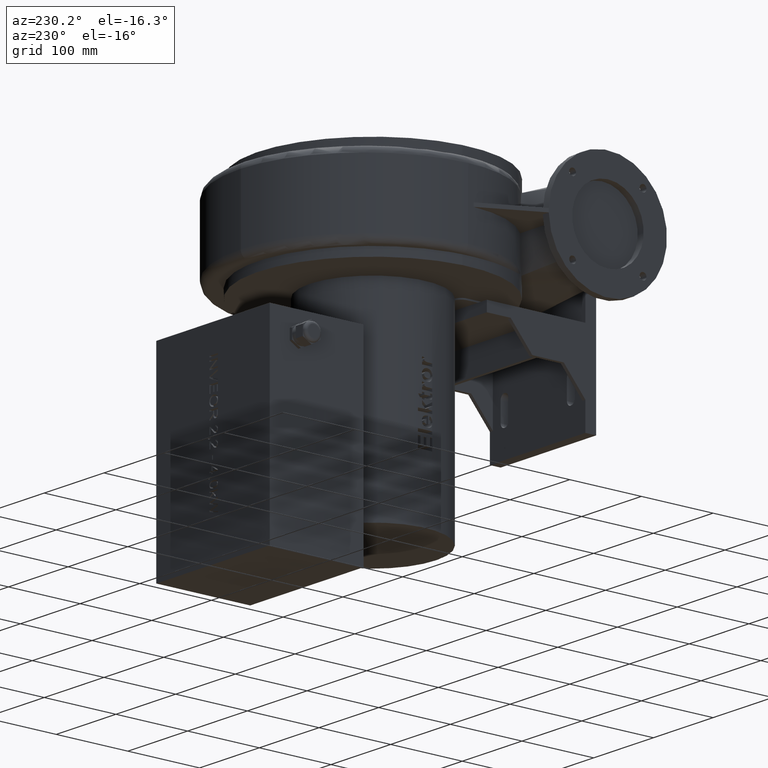
[diagram: clean part render]
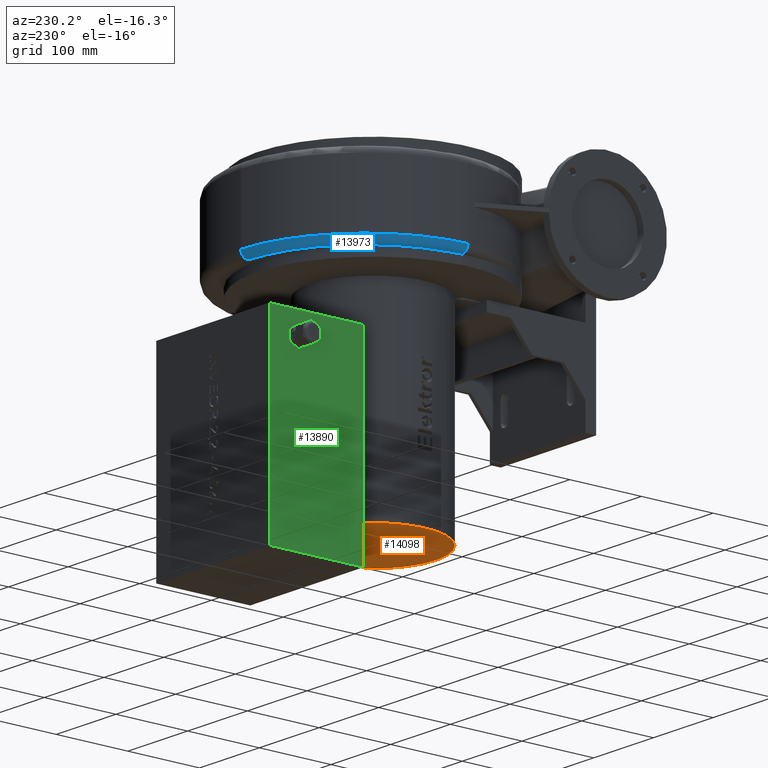
[diagram: same view with three faces highlighted in distinct colors, each labeled with its STEP entity id]
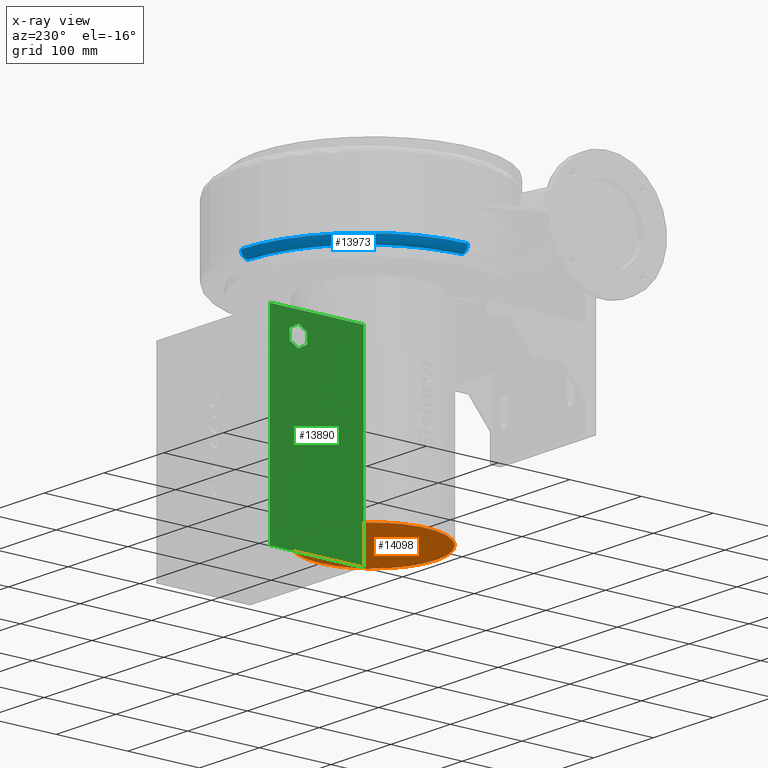
[diagram: x-ray of the same camera — body ghosted, the three highlighted faces saturated]
A machine part, auxiliary view with three faces highlighted in distinct colors.
The next image is the same camera in x-ray (body ghosted, the three faces saturated) — at least one of them is partly hidden behind the body in this view.
Their STEP definitions:

[orange] entity #14098 — the highlighted planar face has unit normal (0, 0, -1).
#157=CIRCLE('',#14670,88.);
#1474=FACE_OUTER_BOUND('',#2347,.T.);
#2347=EDGE_LOOP('',(#11051));
#5845=VERTEX_POINT('',#20377);
#7433=EDGE_CURVE('',#5845,#5845,#157,.T.);
#11051=ORIENTED_EDGE('',*,*,#7433,.F.);
#12755=PLANE('',#14938);
#14098=ADVANCED_FACE('',(#1474),#12755,.T.);
#14670=AXIS2_PLACEMENT_3D('',#20378,#16326,#16327);
#14938=AXIS2_PLACEMENT_3D('',#22278,#17211,#17212);
#16326=DIRECTION('center_axis',(-1.92202700266166E-16,-1.29953312800046E-15,
1.));
#16327=DIRECTION('ref_axis',(-1.,-8.72992445342416E-31,-1.92202700266166E-16));
#17211=DIRECTION('center_axis',(1.92202700266166E-16,1.29953312800046E-15,
-1.));
#17212=DIRECTION('ref_axis',(-1.,0.,0.));
#20377=CARTESIAN_POINT('',(112.435848534473,137.78788717354,-273.004284906135));
#20378=CARTESIAN_POINT('Origin',(24.4358485344734,137.78788717354,-273.004284906135));
#22278=CARTESIAN_POINT('Origin',(24.4358485344734,137.78788717354,-273.004284906135));

[blue] entity #13973 — the highlighted toroidal blend (fillet) surface has major radius 163 mm and minor (blend) radius 10 mm.
#240=CIRCLE('',#14795,163.);
#243=CIRCLE('',#14799,10.);
#244=CIRCLE('',#14800,173.);
#245=CIRCLE('',#14801,10.0000000000002);
#296=TOROIDAL_SURFACE('',#14798,163.,10.);
#673=B_SPLINE_CURVE_WITH_KNOTS('',3,(#21433,#21434,#21435,#21436),
 .UNSPECIFIED.,.F.,.F.,(4,4),(-1.56871192667796,-0.000999386847928538),
 .UNSPECIFIED.);
#1349=FACE_OUTER_BOUND('',#2161,.T.);
#2161=EDGE_LOOP('',(#10384,#10385,#10386,#10387,#10388));
#5987=VERTEX_POINT('',#21117);
#6038=VERTEX_POINT('',#21415);
#6039=VERTEX_POINT('',#21432);
#6052=VERTEX_POINT('',#21508);
#6054=VERTEX_POINT('',#21515);
#7646=EDGE_CURVE('',#6039,#6038,#673,.T.);
#7664=EDGE_CURVE('',#6052,#6039,#240,.T.);
#7667=EDGE_CURVE('',#5987,#6038,#243,.T.);
#7668=EDGE_CURVE('',#5987,#6054,#244,.T.);
#7669=EDGE_CURVE('',#6054,#6052,#245,.T.);
#10384=ORIENTED_EDGE('',*,*,#7646,.T.);
#10385=ORIENTED_EDGE('',*,*,#7667,.F.);
#10386=ORIENTED_EDGE('',*,*,#7668,.T.);
#10387=ORIENTED_EDGE('',*,*,#7669,.T.);
#10388=ORIENTED_EDGE('',*,*,#7664,.T.);
#13973=ADVANCED_FACE('',(#1349),#296,.T.);
#14795=AXIS2_PLACEMENT_3D('',#21509,#16635,#16636);
#14798=AXIS2_PLACEMENT_3D('',#21513,#16641,#16642);
#14799=AXIS2_PLACEMENT_3D('',#21514,#16643,#16644);
#14800=AXIS2_PLACEMENT_3D('',#21516,#16645,#16646);
#14801=AXIS2_PLACEMENT_3D('',#21517,#16647,#16648);
#16635=DIRECTION('center_axis',(-1.22464679914736E-16,-1.29953312800048E-15,
1.));
#16636=DIRECTION('ref_axis',(-0.707106781186548,0.707106781186547,8.32313081562155E-16));
#16641=DIRECTION('center_axis',(-1.22464679914736E-16,-1.29953312800048E-15,
1.));
#16642=DIRECTION('ref_axis',(1.,0.,1.23215503311E-16));
#16643=DIRECTION('center_axis',(-8.88178419700125E-16,-1.,-1.29953312800048E-15));
#16644=DIRECTION('ref_axis',(-1.,8.88178419700125E-16,-1.22464679914735E-16));
#16645=DIRECTION('center_axis',(1.22464679914736E-16,1.29953312800048E-15,
-1.));
#16646=DIRECTION('ref_axis',(-0.707106781186548,0.707106781186547,8.32313081562155E-16));
#16647=DIRECTION('center_axis',(-1.,-1.01654872413676E-31,-1.22464679914736E-16));
#16648=DIRECTION('ref_axis',(-2.46519032881566E-31,1.,1.29953312800048E-15));
#21117=CARTESIAN_POINT('',(-144.564151465527,145.787887173537,24.9957150938644));
#21415=CARTESIAN_POINT('',(-135.364026309033,145.787887173537,15.0277564144393));
#21432=CARTESIAN_POINT('',(-133.819285994609,161.352954438078,14.9957150938644));
#21433=CARTESIAN_POINT('Ctrl Pts',(-133.819285994609,161.352954438078,14.9957150938644));
#21434=CARTESIAN_POINT('Ctrl Pts',(-134.586378515263,156.201416838393,14.9957150938644));
#21435=CARTESIAN_POINT('Ctrl Pts',(-135.102743751021,151.007002182166,15.0067899004396));
#21436=CARTESIAN_POINT('Ctrl Pts',(-135.364026309033,145.787887173537,15.0277564144393));
#21508=CARTESIAN_POINT('',(28.4358485344729,308.787887173537,14.9957150938646));
#21509=CARTESIAN_POINT('Origin',(28.4358485344729,145.787887173537,14.9957150938644));
#21513=CARTESIAN_POINT('Origin',(28.4358485344729,145.787887173537,24.9957150938644));
#21514=CARTESIAN_POINT('Origin',(-134.564151465527,145.787887173537,24.9957150938644));
#21515=CARTESIAN_POINT('',(28.4358485344729,318.787887173538,24.9957150938647));
#21516=CARTESIAN_POINT('Origin',(28.4358485344729,145.787887173537,24.9957150938644));
#21517=CARTESIAN_POINT('Origin',(28.4358485344729,308.787887173537,24.9957150938646));

[green] entity #13890 — the highlighted planar face has unit normal (-1, 0, -0).
#344=FACE_BOUND('',#2037,.T.);
#1266=FACE_OUTER_BOUND('',#2036,.T.);
#2036=EDGE_LOOP('',(#9810,#9811,#9812,#9813));
#2037=EDGE_LOOP('',(#9814,#9815,#9816,#9817,#9818,#9819));
#3034=LINE('',#19735,#4367);
#3048=LINE('',#19785,#4381);
#3051=LINE('',#19790,#4384);
#3053=LINE('',#19794,#4386);
#3055=LINE('',#19798,#4388);
#3057=LINE('',#19802,#4390);
#3058=LINE('',#19804,#4391);
#3141=LINE('',#20087,#4474);
#3144=LINE('',#20094,#4477);
#3145=LINE('',#20095,#4478);
#4367=VECTOR('',#15775,271.);
#4381=VECTOR('',#15823,14.);
#4384=VECTOR('',#15828,14.);
#4386=VECTOR('',#15832,14.);
#4388=VECTOR('',#15836,14.);
#4390=VECTOR('',#15840,14.);
#4391=VECTOR('',#15843,14.);
#4474=VECTOR('',#16060,131.);
#4477=VECTOR('',#16067,271.);
#4478=VECTOR('',#16068,131.);
#5650=VERTEX_POINT('',#19731);
#5652=VERTEX_POINT('',#19734);
#5670=VERTEX_POINT('',#19782);
#5671=VERTEX_POINT('',#19784);
#5672=VERTEX_POINT('',#19788);
#5673=VERTEX_POINT('',#19792);
#5674=VERTEX_POINT('',#19796);
#5675=VERTEX_POINT('',#19800);
#5748=VERTEX_POINT('',#20085);
#5750=VERTEX_POINT('',#20093);
#7155=EDGE_CURVE('',#5652,#5650,#3034,.T.);
#7175=EDGE_CURVE('',#5671,#5670,#3048,.T.);
#7178=EDGE_CURVE('',#5670,#5672,#3051,.T.);
#7180=EDGE_CURVE('',#5672,#5673,#3053,.T.);
#7182=EDGE_CURVE('',#5673,#5674,#3055,.T.);
#7184=EDGE_CURVE('',#5674,#5675,#3057,.T.);
#7185=EDGE_CURVE('',#5675,#5671,#3058,.T.);
#7289=EDGE_CURVE('',#5748,#5650,#3141,.T.);
#7292=EDGE_CURVE('',#5748,#5750,#3144,.T.);
#7293=EDGE_CURVE('',#5750,#5652,#3145,.T.);
#9810=ORIENTED_EDGE('',*,*,#7155,.T.);
#9811=ORIENTED_EDGE('',*,*,#7289,.F.);
#9812=ORIENTED_EDGE('',*,*,#7292,.T.);
#9813=ORIENTED_EDGE('',*,*,#7293,.T.);
#9814=ORIENTED_EDGE('',*,*,#7175,.T.);
#9815=ORIENTED_EDGE('',*,*,#7178,.T.);
#9816=ORIENTED_EDGE('',*,*,#7180,.T.);
#9817=ORIENTED_EDGE('',*,*,#7182,.T.);
#9818=ORIENTED_EDGE('',*,*,#7184,.T.);
#9819=ORIENTED_EDGE('',*,*,#7185,.T.);
#12594=PLANE('',#14599);
#13890=ADVANCED_FACE('',(#1266,#344),#12594,.T.);
#14599=AXIS2_PLACEMENT_3D('',#20092,#16065,#16066);
#15775=DIRECTION('',(8.52613317695719E-15,-1.32244394362602E-15,-1.));
#15823=DIRECTION('',(-4.88462558908048E-15,-0.866025403784438,0.500000000000001));
#15828=DIRECTION('',(3.6415075878767E-15,-0.86602540378444,-0.499999999999998));
#15832=DIRECTION('',(8.52613317695719E-15,-1.95685710055468E-15,-1.));
#15836=DIRECTION('',(4.88462558908049E-15,0.866025403784437,-0.500000000000002));
#15840=DIRECTION('',(-3.6415075878767E-15,0.86602540378444,0.499999999999998));
#15843=DIRECTION('',(-8.52613317695719E-15,1.32244394362602E-15,1.));
#16060=DIRECTION('',(7.1771451262947E-16,1.,-1.32244394362601E-15));
#16065=DIRECTION('center_axis',(-1.,7.17714512629459E-16,-8.52613317695719E-15));
#16066=DIRECTION('ref_axis',(-8.5265128291212E-15,0.,1.));
#16067=DIRECTION('',(-8.52613317695719E-15,1.32244394362602E-15,1.));
#16068=DIRECTION('',(7.1771451262947E-16,1.,-1.32244394362601E-15));
#19731=CARTESIAN_POINT('',(-70.5641514655243,360.787887173538,-335.704284906137));
#19734=CARTESIAN_POINT('',(-70.5641514655266,360.787887173538,-64.7042849061366));
#19735=CARTESIAN_POINT('',(-70.5641514655243,360.787887173538,-335.704284906137));
#19782=CARTESIAN_POINT('',(-70.5641514655265,320.787887173538,-80.7042849061366));
#19784=CARTESIAN_POINT('',(-70.5641514655264,332.91224282652,-87.7042849061366));
#19785=CARTESIAN_POINT('',(-70.5641514655267,289.260963384891,-62.5022069700405));
#19788=CARTESIAN_POINT('',(-70.5641514655265,308.663531520556,-87.7042849061365));
#19790=CARTESIAN_POINT('',(-70.5641514655264,290.126988788676,-98.4063628422325));
#19792=CARTESIAN_POINT('',(-70.5641514655263,308.663531520556,-101.704284906137));
#19794=CARTESIAN_POINT('',(-70.5641514655265,308.663531520556,-76.2042849061366));
#19796=CARTESIAN_POINT('',(-70.5641514655263,320.787887173538,-108.704284906137));
#19798=CARTESIAN_POINT('',(-70.5641514655265,271.074429905418,-80.0022069700404));
#19800=CARTESIAN_POINT('',(-70.5641514655263,332.91224282652,-101.704284906137));
#19802=CARTESIAN_POINT('',(-70.5641514655262,296.189166615167,-122.906362842233));
#19804=CARTESIAN_POINT('',(-70.5641514655265,332.91224282652,-83.2042849061366));
#20085=CARTESIAN_POINT('',(-70.5641514655244,229.787887173538,-335.704284906136));
#20087=CARTESIAN_POINT('',(-70.5641514655244,229.787887173538,-335.704284906136));
#20092=CARTESIAN_POINT('Origin',(-70.5641514655267,229.787887173538,-64.7042849061364));
#20093=CARTESIAN_POINT('',(-70.5641514655267,229.787887173538,-64.7042849061364));
#20094=CARTESIAN_POINT('',(-70.5641514655244,229.787887173538,-335.704284906136));
#20095=CARTESIAN_POINT('',(-70.5641514655267,229.787887173538,-64.7042849061364));